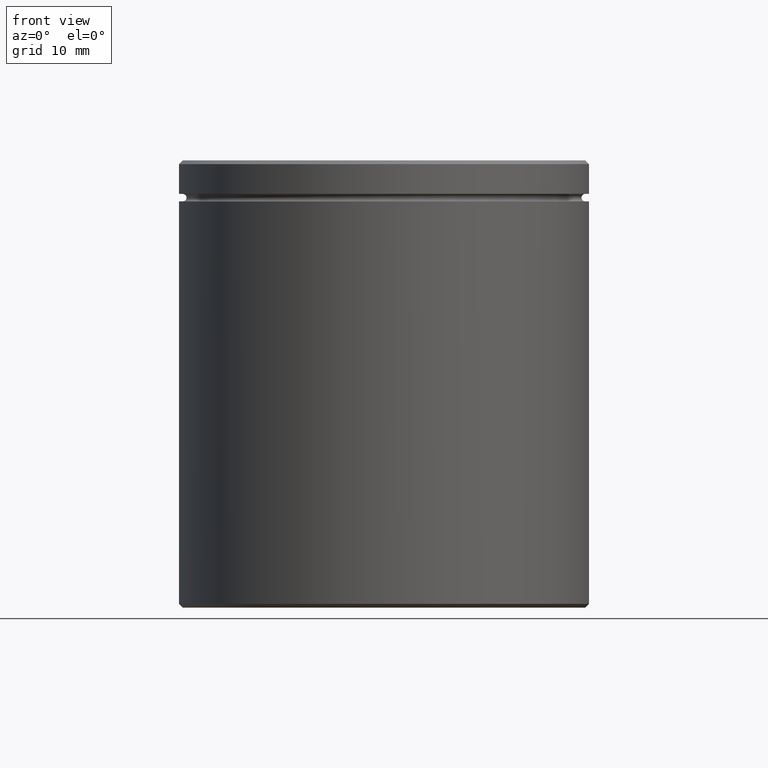
[diagram: clean part render]
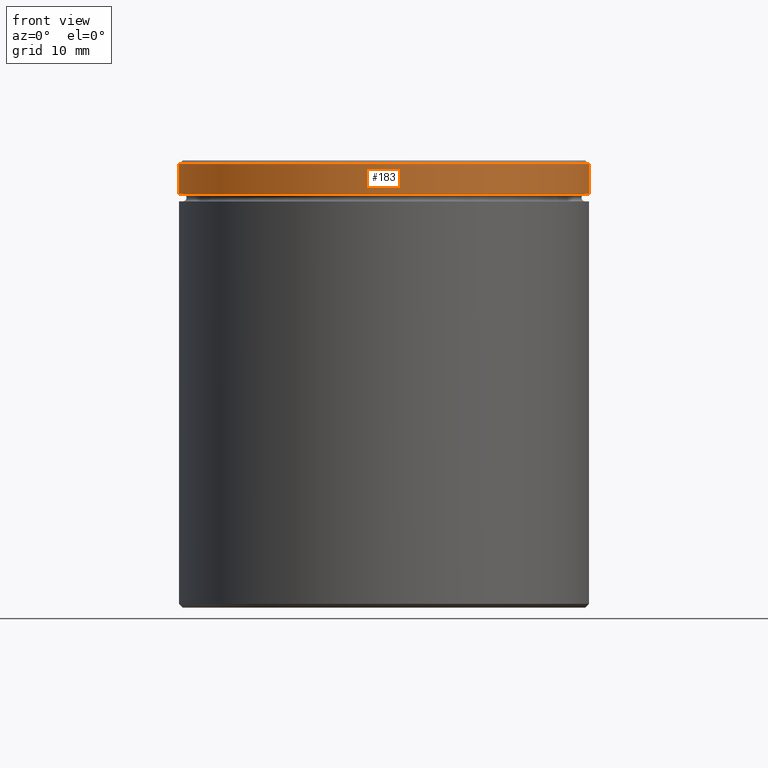
[diagram: same view with one face highlighted and labeled with its STEP entity id]
A machine part, front view. The second image highlights one B-rep face of the part: STEP entity #183.
In plain terms, the highlighted cylindrical surface (partial cylindrical patch) has radius 27.5 mm, axis along (-0, -0, 1).
Its self-contained STEP definition (entity closure, byte-faithful):
#3 = VERTEX_POINT ( 'NONE', #329 ) ;
#24 = VERTEX_POINT ( 'NONE', #539 ) ;
#36 = DIRECTION ( 'NONE',  ( -0.000000000000000000, -0.000000000000000000, 1.000000000000000000 ) ) ;
#72 = EDGE_CURVE ( 'NONE', #181, #461, #427, .T. ) ;
#96 = DIRECTION ( 'NONE',  ( -0.000000000000000000, -0.000000000000000000, 1.000000000000000000 ) ) ;
#110 = VECTOR ( 'NONE', #96, 1000.000000000000000 ) ;
#126 = DIRECTION ( 'NONE',  ( 0.000000000000000000, 0.000000000000000000, -1.000000000000000000 ) ) ;
#141 = LINE ( 'NONE', #534, #110 ) ;
#152 = DIRECTION ( 'NONE',  ( 1.000000000000000000, 0.000000000000000000, 0.000000000000000000 ) ) ;
#158 = AXIS2_PLACEMENT_3D ( 'NONE', #429, #36, #163 ) ;
#163 = DIRECTION ( 'NONE',  ( 1.000000000000000000, 0.000000000000000000, 0.000000000000000000 ) ) ;
#173 = VECTOR ( 'NONE', #177, 1000.000000000000000 ) ;
#177 = DIRECTION ( 'NONE',  ( -0.000000000000000000, -0.000000000000000000, 1.000000000000000000 ) ) ;
#181 = VERTEX_POINT ( 'NONE', #343 ) ;
#183 = ADVANCED_FACE ( 'NONE', ( #346 ), #209, .T. ) ;
#205 = AXIS2_PLACEMENT_3D ( 'NONE', #208, #126, #390 ) ;
#208 = CARTESIAN_POINT ( 'NONE',  ( 0.000000000000000000, 0.000000000000000000, -0.5000000000000143219 ) ) ;
#209 = CYLINDRICAL_SURFACE ( 'NONE', #158, 27.50000000000000000 ) ;
#215 = CIRCLE ( 'NONE', #530, 27.50000000000000000 ) ;
#285 = DIRECTION ( 'NONE',  ( -0.000000000000000000, -0.000000000000000000, 1.000000000000000000 ) ) ;
#287 = ORIENTED_EDGE ( 'NONE', *, *, #72, .T. ) ;
#327 = EDGE_CURVE ( 'NONE', #3, #181, #141, .T. ) ;
#329 = CARTESIAN_POINT ( 'NONE',  ( 27.50000000000000000, 0.000000000000000000, -4.500000000000000888 ) ) ;
#337 = EDGE_CURVE ( 'NONE', #24, #3, #215, .T. ) ;
#343 = CARTESIAN_POINT ( 'NONE',  ( 27.50000000000000000, 0.000000000000000000, -0.5000000000000143219 ) ) ;
#346 = FACE_OUTER_BOUND ( 'NONE', #397, .T. ) ;
#367 = CARTESIAN_POINT ( 'NONE',  ( 0.000000000000000000, 0.000000000000000000, -4.500000000000000888 ) ) ;
#383 = ORIENTED_EDGE ( 'NONE', *, *, #547, .F. ) ;
#390 = DIRECTION ( 'NONE',  ( 1.000000000000000000, 0.000000000000000000, 0.000000000000000000 ) ) ;
#397 = EDGE_LOOP ( 'NONE', ( #383, #533, #476, #287 ) ) ;
#427 = CIRCLE ( 'NONE', #205, 27.50000000000000000 ) ;
#429 = CARTESIAN_POINT ( 'NONE',  ( 0.000000000000000000, 0.000000000000000000, 0.000000000000000000 ) ) ;
#431 = LINE ( 'NONE', #565, #173 ) ;
#461 = VERTEX_POINT ( 'NONE', #550 ) ;
#476 = ORIENTED_EDGE ( 'NONE', *, *, #327, .T. ) ;
#530 = AXIS2_PLACEMENT_3D ( 'NONE', #367, #285, #152 ) ;
#533 = ORIENTED_EDGE ( 'NONE', *, *, #337, .T. ) ;
#534 = CARTESIAN_POINT ( 'NONE',  ( 27.50000000000000000, 0.000000000000000000, 0.000000000000000000 ) ) ;
#539 = CARTESIAN_POINT ( 'NONE',  ( -27.50000000000000000, 3.367778697655221307E-15, -4.500000000000000888 ) ) ;
#547 = EDGE_CURVE ( 'NONE', #24, #461, #431, .T. ) ;
#550 = CARTESIAN_POINT ( 'NONE',  ( -27.50000000000000000, 3.367778697655221307E-15, -0.5000000000000143219 ) ) ;
#565 = CARTESIAN_POINT ( 'NONE',  ( -27.50000000000000000, 3.367778697655221307E-15, 0.000000000000000000 ) ) ;